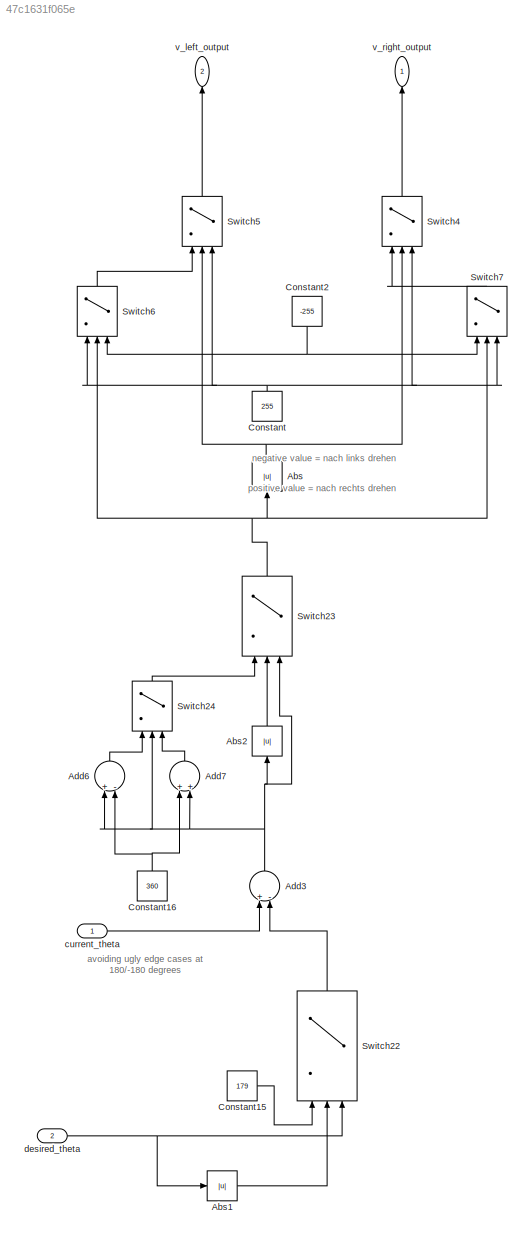
MODEL slx_47c1631f065e
KIND model
CONFIG AbsTol = auto
CONFIG EnableMultiTasking = off
CONFIG FixedStep = 0.01
CONFIG MaxStep = auto
CONFIG MinStep = auto
CONFIG RelTol = 1e-3
CONFIG SampleTimeConstraint = Unconstrained
CONFIG Solver = VariableStepAuto
CONFIG SolverName = VariableStepAuto
CONFIG StartTime = 0.0
CONFIG StopTime = 10.0
BLOCK [Abs] Abs
  SaturateOnIntegerOverflow = off
  ZeroCross = off
BLOCK [Abs] Abs1
  SaturateOnIntegerOverflow = off
  ZeroCross = off
BLOCK [Abs] Abs2
  SaturateOnIntegerOverflow = off
  ZeroCross = off
BLOCK [Sum] Add3
  InputSameDT = off
  Inputs = +-
  OutDataTypeStr = Inherit: Inherit via internal rule
  Ports = [2, 1]
  SaturateOnIntegerOverflow = off
BLOCK [Sum] Add6
  InputSameDT = off
  Inputs = +-
  OutDataTypeStr = Inherit: Inherit via internal rule
  Ports = [2, 1]
  SaturateOnIntegerOverflow = off
BLOCK [Sum] Add7
  InputSameDT = off
  OutDataTypeStr = Inherit: Inherit via internal rule
  Ports = [2, 1]
  SaturateOnIntegerOverflow = off
BLOCK [Constant] Constant
  Value = 255
BLOCK [Constant] Constant15
  Value = 179
BLOCK [Constant] Constant16
  Value = 360
BLOCK [Constant] Constant2
  Value = -255
BLOCK [Switch] Switch22
  InputSameDT = off
  SaturateOnIntegerOverflow = off
  Threshold = 177
  ZeroCross = off
BLOCK [Switch] Switch23
  Criteria = u2 > Threshold
  InputSameDT = off
  SaturateOnIntegerOverflow = off
  Threshold = 180
  ZeroCross = off
BLOCK [Switch] Switch24
  Criteria = u2 > Threshold
  InputSameDT = off
  SaturateOnIntegerOverflow = off
  ZeroCross = off
BLOCK [Switch] Switch4
  InputSameDT = off
  SaturateOnIntegerOverflow = off
  Threshold = 3
BLOCK [Switch] Switch5
  InputSameDT = off
  SaturateOnIntegerOverflow = off
  Threshold = 3
BLOCK [Switch] Switch6
  Criteria = u2 > Threshold
  InputSameDT = off
  SaturateOnIntegerOverflow = off
  ZeroCross = off
BLOCK [Switch] Switch7
  Criteria = u2 > Threshold
  InputSameDT = off
  SaturateOnIntegerOverflow = off
  ZeroCross = off
BLOCK [Inport] current_theta
  IconDisplay = Port number
BLOCK [Inport] desired_theta
  IconDisplay = Port number
  Port = 2
BLOCK [Outport] v_left_output
  IconDisplay = Port number
  Port = 2
BLOCK [Outport] v_right_output
  IconDisplay = Port number
ANNOTATION (root): avoiding ugly edge cases at 180/-180 degrees
ANNOTATION (root): negative value = nach links drehen
ANNOTATION (root): positive value = nach rechts drehen
LINE Abs1:1 -> Switch22:2
LINE Abs2:1 -> Switch23:2
NET Abs:1 -> Switch4:2, Switch5:2
NET Add3:1 -> Abs2:1, Add6:1, Add7:2, Switch23:3, Switch24:2
LINE Add6:1 -> Switch24:1
LINE Add7:1 -> Switch24:3
LINE Constant15:1 -> Switch22:1
NET Constant16:1 -> Add6:2, Add7:1
NET Constant2:1 -> Switch6:3, Switch7:1
NET Constant:1 -> Switch4:3, Switch5:3, Switch6:1, Switch7:3
LINE Switch22:1 -> Add3:2
NET Switch23:1 -> Abs:1, Switch6:2, Switch7:2
LINE Switch24:1 -> Switch23:1
LINE Switch4:1 -> v_right_output:1
LINE Switch5:1 -> v_left_output:1
LINE Switch6:1 -> Switch5:1
LINE Switch7:1 -> Switch4:1
LINE current_theta:1 -> Add3:1
NET desired_theta:1 -> Abs1:1, Switch22:3
note: NET lines group one-source signal fan-out (src -> all destinations, sorted); 1:1 wires keep LINE
